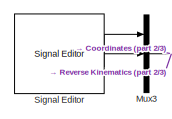
[diagram: root canvas - part 1/3, top left region]
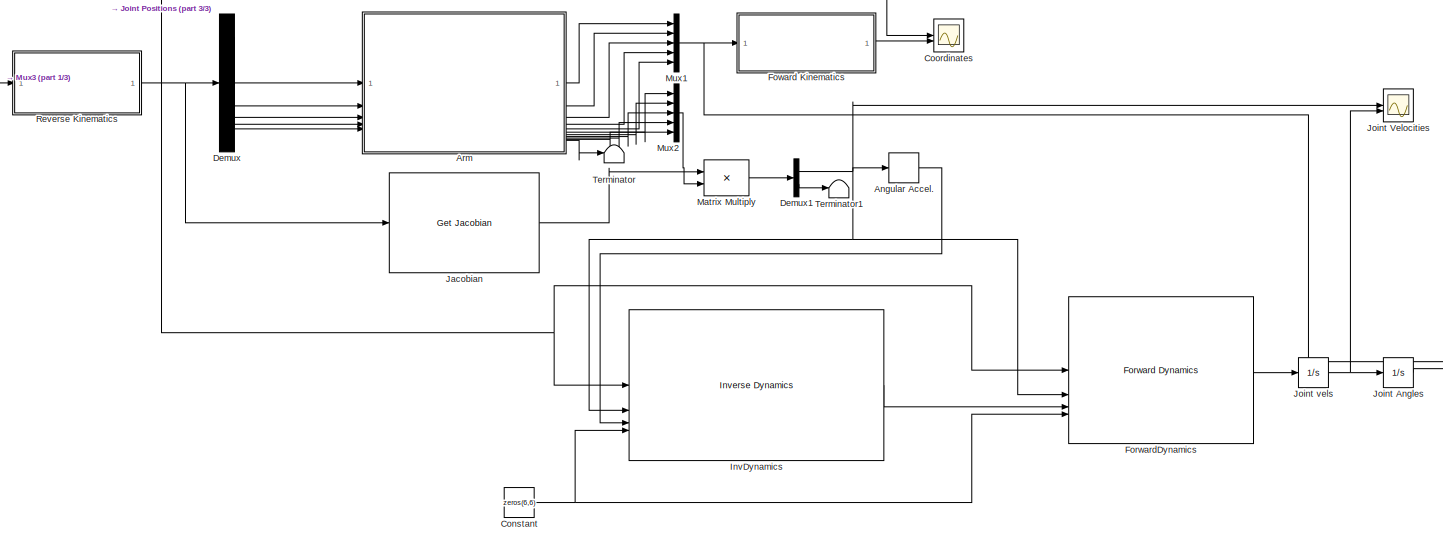
[diagram: root canvas - part 2/3, most of the canvas]
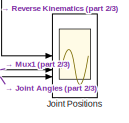
[diagram: root canvas - part 3/3, bottom right region]
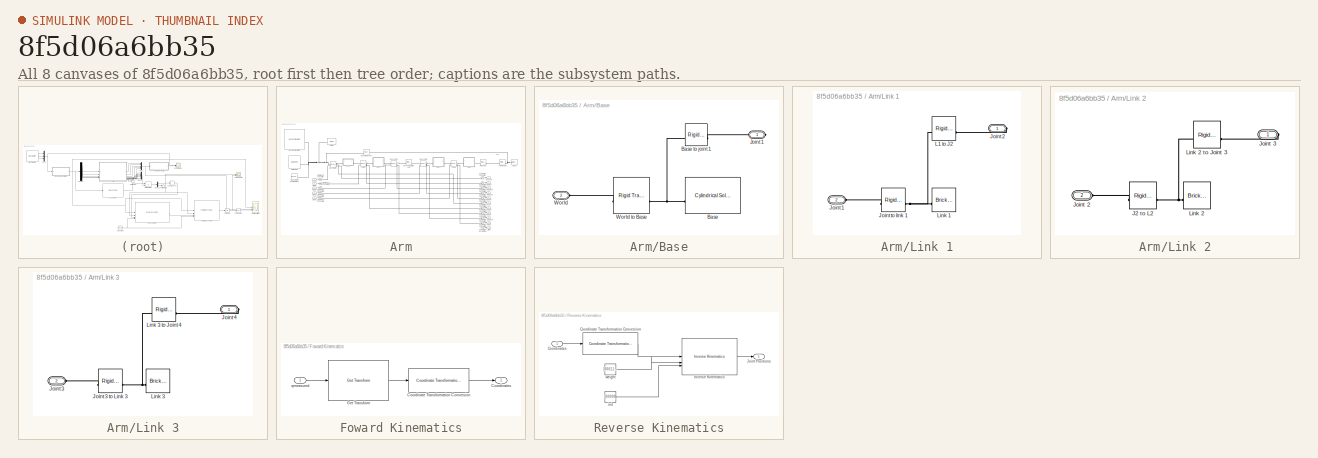
[diagram: thumbnail index - all 8 canvases of the model, root first then tree order]
MODEL slx_8f5d06a6bb35
KIND model
CONFIG AbsTol = auto
CONFIG EnableMultiTasking = off
CONFIG FixedStep = auto
CONFIG MaxStep = auto
CONFIG MinStep = auto
CONFIG RelTol = 1e-3
CONFIG SampleTimeConstraint = Unconstrained
CONFIG SolverName = VariableStepAuto
CONFIG StartTime = 0.0
CONFIG StopTime = 10
BLOCK [Derivative] Angular Accel.
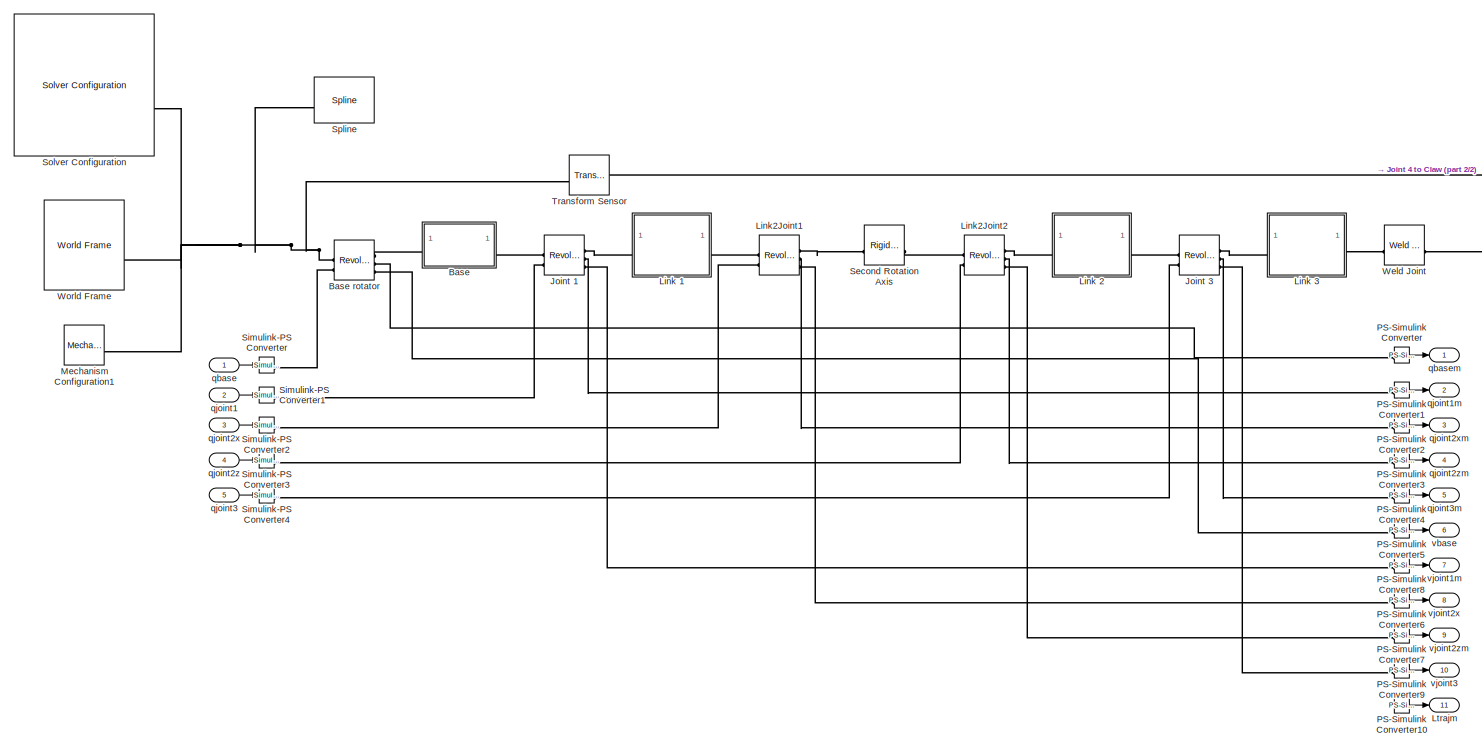
[diagram: Arm - part 1/2, most of the canvas]
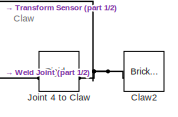
[diagram: Arm - part 2/2, top right region]
BLOCK [SubSystem] Arm
BLOCK [SubSystem] Arm/Base
BLOCK [Reference] Arm/Base rotator  REF=sm_lib/Joints/Revolute Joint
  SourceBlock = sm_lib/Joints/Revolute Joint
  SourceType = Revolute Joint
BLOCK [Reference] Arm/Base/Base  REF=sm_lib/Body Elements/Cylindrical Solid
  SourceBlock = sm_lib/Body Elements/Cylindrical Solid
  SourceType = Cylindrical Solid
BLOCK [Reference] Arm/Base/Base to joint 1  REF=sm_lib/Frames and
Transforms/Rigid
Transform
  SourceBlock = sm_lib/Frames and\nTransforms/Rigid\nTransform
  SourceType = Rigid\nTransform
BLOCK [PMIOPort] Arm/Base/Joint 1
  Side = Right
BLOCK [PMIOPort] Arm/Base/World
  Port = 2
  Side = Left
BLOCK [Reference] Arm/Base/World to Base  REF=sm_lib/Frames and
Transforms/Rigid
Transform
  SourceBlock = sm_lib/Frames and\nTransforms/Rigid\nTransform
  SourceType = Rigid\nTransform
BLOCK [Reference] Arm/Claw2  REF=sm_lib/Body Elements/Brick Solid
  SourceBlock = sm_lib/Body Elements/Brick Solid
  SourceType = Brick Solid
BLOCK [Reference] Arm/Joint 1  REF=sm_lib/Joints/Revolute Joint
  SourceBlock = sm_lib/Joints/Revolute Joint
  SourceType = Revolute Joint
BLOCK [Reference] Arm/Joint 3  REF=sm_lib/Joints/Revolute Joint
  SourceBlock = sm_lib/Joints/Revolute Joint
  SourceType = Revolute Joint
BLOCK [Reference] Arm/Joint 4 to Claw  REF=sm_lib/Frames and
Transforms/Rigid
Transform
  SourceBlock = sm_lib/Frames and\nTransforms/Rigid\nTransform
  SourceType = Rigid\nTransform
BLOCK [SubSystem] Arm/Link 1
BLOCK [PMIOPort] Arm/Link 1/Joint 1
  Port = 2
  Side = Left
BLOCK [PMIOPort] Arm/Link 1/Joint 2
  Side = Right
BLOCK [Reference] Arm/Link 1/Joint to link 1  REF=sm_lib/Frames and
Transforms/Rigid
Transform
  SourceBlock = sm_lib/Frames and\nTransforms/Rigid\nTransform
  SourceType = Rigid\nTransform
BLOCK [Reference] Arm/Link 1/L1 to J2  REF=sm_lib/Frames and
Transforms/Rigid
Transform
  SourceBlock = sm_lib/Frames and\nTransforms/Rigid\nTransform
  SourceType = Rigid\nTransform
BLOCK [Reference] Arm/Link 1/Link 1   REF=sm_lib/Body Elements/Brick Solid
  SourceBlock = sm_lib/Body Elements/Brick Solid
  SourceType = Brick Solid
BLOCK [SubSystem] Arm/Link 2
BLOCK [Reference] Arm/Link 2/J2 to L2  REF=sm_lib/Frames and
Transforms/Rigid
Transform
  SourceBlock = sm_lib/Frames and\nTransforms/Rigid\nTransform
  SourceType = Rigid\nTransform
BLOCK [PMIOPort] Arm/Link 2/Joint 2
  Port = 2
  Side = Left
BLOCK [PMIOPort] Arm/Link 2/Joint 3
  Side = Right
BLOCK [Reference] Arm/Link 2/Link 2  REF=sm_lib/Body Elements/Brick Solid
  SourceBlock = sm_lib/Body Elements/Brick Solid
  SourceType = Brick Solid
BLOCK [Reference] Arm/Link 2/Link 2 to Joint 3  REF=sm_lib/Frames and
Transforms/Rigid
Transform
  SourceBlock = sm_lib/Frames and\nTransforms/Rigid\nTransform
  SourceType = Rigid\nTransform
BLOCK [SubSystem] Arm/Link 3
BLOCK [PMIOPort] Arm/Link 3/Joint 3
  Port = 2
  Side = Left
BLOCK [Reference] Arm/Link 3/Joint 3 to Link 3  REF=sm_lib/Frames and
Transforms/Rigid
Transform
  SourceBlock = sm_lib/Frames and\nTransforms/Rigid\nTransform
  SourceType = Rigid\nTransform
BLOCK [PMIOPort] Arm/Link 3/Joint 4
  Side = Right
BLOCK [Reference] Arm/Link 3/Link 3  REF=sm_lib/Body Elements/Brick Solid
  SourceBlock = sm_lib/Body Elements/Brick Solid
  SourceType = Brick Solid
BLOCK [Reference] Arm/Link 3/Link 3 to Joint 4  REF=sm_lib/Frames and
Transforms/Rigid
Transform
  SourceBlock = sm_lib/Frames and\nTransforms/Rigid\nTransform
  SourceType = Rigid\nTransform
BLOCK [Reference] Arm/Link2Joint1  REF=sm_lib/Joints/Revolute Joint
  SourceBlock = sm_lib/Joints/Revolute Joint
  SourceType = Revolute Joint
BLOCK [Reference] Arm/Link2Joint2  REF=sm_lib/Joints/Revolute Joint
  SourceBlock = sm_lib/Joints/Revolute Joint
  SourceType = Revolute Joint
BLOCK [Outport] Arm/Ltrajm
  Port = 11
BLOCK [Reference] Arm/Mechanism Configuration1  REF=sm_lib/Utilities/Mechanism
Configuration
  SourceBlock = sm_lib/Utilities/Mechanism\nConfiguration
  SourceType = Mechanism\nConfiguration
BLOCK [Reference] Arm/PS-Simulink Converter  REF=nesl_utility/PS-Simulink
Converter
  SourceBlock = nesl_utility/PS-Simulink\nConverter
  SourceType = PS-Simulink\nConverter
BLOCK [Reference] Arm/PS-Simulink Converter1  REF=nesl_utility/PS-Simulink
Converter
  SourceBlock = nesl_utility/PS-Simulink\nConverter
  SourceType = PS-Simulink\nConverter
BLOCK [Reference] Arm/PS-Simulink Converter10  REF=nesl_utility/PS-Simulink
Converter
  SourceBlock = nesl_utility/PS-Simulink\nConverter
  SourceType = PS-Simulink\nConverter
BLOCK [Reference] Arm/PS-Simulink Converter2  REF=nesl_utility/PS-Simulink
Converter
  SourceBlock = nesl_utility/PS-Simulink\nConverter
  SourceType = PS-Simulink\nConverter
BLOCK [Reference] Arm/PS-Simulink Converter3  REF=nesl_utility/PS-Simulink
Converter
  SourceBlock = nesl_utility/PS-Simulink\nConverter
  SourceType = PS-Simulink\nConverter
BLOCK [Reference] Arm/PS-Simulink Converter4  REF=nesl_utility/PS-Simulink
Converter
  SourceBlock = nesl_utility/PS-Simulink\nConverter
  SourceType = PS-Simulink\nConverter
BLOCK [Reference] Arm/PS-Simulink Converter5  REF=nesl_utility/PS-Simulink
Converter
  SourceBlock = nesl_utility/PS-Simulink\nConverter
  SourceType = PS-Simulink\nConverter
BLOCK [Reference] Arm/PS-Simulink Converter6  REF=nesl_utility/PS-Simulink
Converter
  SourceBlock = nesl_utility/PS-Simulink\nConverter
  SourceType = PS-Simulink\nConverter
BLOCK [Reference] Arm/PS-Simulink Converter7  REF=nesl_utility/PS-Simulink
Converter
  SourceBlock = nesl_utility/PS-Simulink\nConverter
  SourceType = PS-Simulink\nConverter
BLOCK [Reference] Arm/PS-Simulink Converter8  REF=nesl_utility/PS-Simulink
Converter
  SourceBlock = nesl_utility/PS-Simulink\nConverter
  SourceType = PS-Simulink\nConverter
BLOCK [Reference] Arm/PS-Simulink Converter9  REF=nesl_utility/PS-Simulink
Converter
  SourceBlock = nesl_utility/PS-Simulink\nConverter
  SourceType = PS-Simulink\nConverter
BLOCK [Reference] Arm/Second Rotation Axis  REF=sm_lib/Frames and
Transforms/Rigid
Transform
  SourceBlock = sm_lib/Frames and\nTransforms/Rigid\nTransform
  SourceType = Rigid\nTransform
BLOCK [Reference] Arm/Simulink-PS Converter  REF=nesl_utility/Simulink-PS
Converter
  SourceBlock = nesl_utility/Simulink-PS\nConverter
  SourceType = Simulink-PS\nConverter
BLOCK [Reference] Arm/Simulink-PS Converter1  REF=nesl_utility/Simulink-PS
Converter
  SourceBlock = nesl_utility/Simulink-PS\nConverter
  SourceType = Simulink-PS\nConverter
BLOCK [Reference] Arm/Simulink-PS Converter2  REF=nesl_utility/Simulink-PS
Converter
  SourceBlock = nesl_utility/Simulink-PS\nConverter
  SourceType = Simulink-PS\nConverter
BLOCK [Reference] Arm/Simulink-PS Converter3  REF=nesl_utility/Simulink-PS
Converter
  SourceBlock = nesl_utility/Simulink-PS\nConverter
  SourceType = Simulink-PS\nConverter
BLOCK [Reference] Arm/Simulink-PS Converter4  REF=nesl_utility/Simulink-PS
Converter
  SourceBlock = nesl_utility/Simulink-PS\nConverter
  SourceType = Simulink-PS\nConverter
BLOCK [Reference] Arm/Solver Configuration  REF=nesl_utility/Solver
Configuration
  SourceBlock = nesl_utility/Solver\nConfiguration
  SourceType = Solver\nConfiguration
BLOCK [Reference] Arm/Spline  REF=sm_lib/Curves and Surfaces/Spline
  SourceBlock = sm_lib/Curves and Surfaces/Spline
  SourceType = Spline
BLOCK [Reference] Arm/Transform Sensor  REF=sm_lib/Frames and
Transforms/Transform
Sensor
  SourceBlock = sm_lib/Frames and\nTransforms/Transform\nSensor
  SourceType = Transform\nSensor
BLOCK [Reference] Arm/Weld Joint  REF=sm_lib/Joints/Weld Joint
  SourceBlock = sm_lib/Joints/Weld Joint
  SourceType = Weld Joint
BLOCK [Reference] Arm/World Frame  REF=sm_lib/Frames and
Transforms/World Frame
  SourceBlock = sm_lib/Frames and\nTransforms/World Frame
  SourceType = World Frame
BLOCK [Inport] Arm/qbase
BLOCK [Outport] Arm/qbasem
BLOCK [Inport] Arm/qjoint1
  Port = 2
BLOCK [Outport] Arm/qjoint1m
  Port = 2
BLOCK [Inport] Arm/qjoint2x
  Port = 3
BLOCK [Outport] Arm/qjoint2xm
  Port = 3
BLOCK [Inport] Arm/qjoint2z
  Port = 4
BLOCK [Outport] Arm/qjoint2zm
  Port = 4
BLOCK [Inport] Arm/qjoint3
  Port = 5
BLOCK [Outport] Arm/qjoint3m
  Port = 5
BLOCK [Outport] Arm/vbase
  Port = 6
BLOCK [Outport] Arm/vjoint1m
  Port = 7
BLOCK [Outport] Arm/vjoint2x
  Port = 8
BLOCK [Outport] Arm/vjoint2zm
  Port = 9
BLOCK [Outport] Arm/vjoint3
  Port = 10
BLOCK [Constant] Constant
  Value = zeros(6,6)
BLOCK [Scope] Coordinates
  Floating = off
  NumInputPorts = 2
  ScopeSpecificationString = Simulink.scopes.TimeScopeBlockCfg('CurrentConfiguration', extmgr.ConfigurationSet(extmgr.Configuration('Core','General UI',true),extmgr.Configuration('Core','Source UI',true),extmgr.Configuration('Sources','WiredSimulink',true,'DataLoggingVariableName','ScopeData1'),extmgr.Configuration('Visuals','Time Domain',true,'SerializedDisplays',{struct('MinYLimReal','0.375','MaxYLimReal','1.625','YLabelRea...<+2101ch>
BLOCK [Demux] Demux
  Outputs = 5
BLOCK [Demux] Demux1
  Outputs = 2
BLOCK [Reference] ForwardDynamics  REF=robotmaniplib/Forward Dynamics
  SourceBlock = robotmaniplib/Forward Dynamics
  SourceType = Forward Dynamics
BLOCK [SubSystem] Foward Kinematics
BLOCK [Reference] Foward Kinematics/Coordinate Transformation Conversion  REF=robotcorelib/Coordinate Transformation Conversion
  LibrarySourceBlock = robotutilslib/Coordinate Transformation Conversion
  SourceBlock = robotcorelib/Coordinate Transformation Conversion
  SourceType = robotics.slcore.internal.block.CoordinateTransformationConversion
BLOCK [Outport] Foward Kinematics/Coordinates
BLOCK [Reference] Foward Kinematics/Get Transform  REF=robotmaniplib/Get Transform
  SourceBlock = robotmaniplib/Get Transform
  SourceType = Get Transform
BLOCK [Inport] Foward Kinematics/qmeasured
BLOCK [Reference] InvDynamics  REF=robotmaniplib/Inverse Dynamics
  SourceBlock = robotmaniplib/Inverse Dynamics
  SourceType = Inverse Dynamics
BLOCK [Reference] Jacobian  REF=robotmaniplib/Get Jacobian
  SourceBlock = robotmaniplib/Get Jacobian
  SourceType = Get Jacobian
BLOCK [Integrator] Joint Angles
BLOCK [Scope] Joint Positions
  Floating = off
  NumInputPorts = 3
  ScopeSpecificationString = Simulink.scopes.TimeScopeBlockCfg('CurrentConfiguration', extmgr.ConfigurationSet(extmgr.Configuration('Core','General UI',true),extmgr.Configuration('Core','Source UI',true),extmgr.Configuration('Sources','WiredSimulink',true),extmgr.Configuration('Visuals','Time Domain',true,'SerializedDisplays',{struct('MinYLimReal','-1.38119','MaxYLimReal','0.1013','YLabelReal','','MinYLimMag','0.00000','MaxYL...<+2897ch>
BLOCK [Scope] Joint Velocities
  Floating = off
  NumInputPorts = 2
  ScopeSpecificationString = Simulink.scopes.TimeScopeBlockCfg('CurrentConfiguration', extmgr.ConfigurationSet(extmgr.Configuration('Core','General UI',true),extmgr.Configuration('Core','Source UI',true),extmgr.Configuration('Sources','WiredSimulink',true,'DataLoggingVariableName','ScopeData2'),extmgr.Configuration('Visuals','Time Domain',true,'SerializedDisplays',{struct('MinYLimReal','-0.32875','MaxYLimReal','0.19801','YLab...<+2130ch>
BLOCK [Integrator] Joint vels
BLOCK [Product] Matrix Multiply
  Multiplication = Matrix(*)
BLOCK [Mux] Mux1
  DisplayOption = bar
  Inputs = 5
BLOCK [Mux] Mux2
  DisplayOption = bar
  Inputs = 5
BLOCK [Mux] Mux3
  DisplayOption = bar
  Inputs = 3
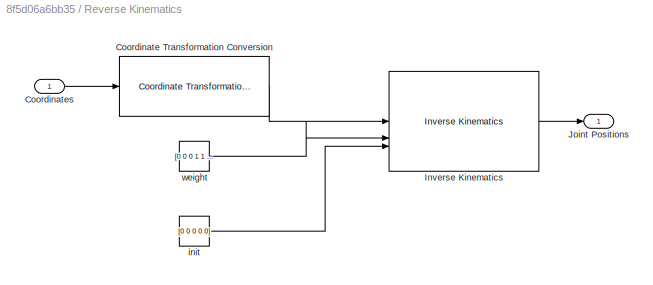
BLOCK [SubSystem] Reverse Kinematics
BLOCK [Reference] Reverse Kinematics/Coordinate Transformation Conversion  REF=robotcorelib/Coordinate Transformation Conversion
  LibrarySourceBlock = robotutilslib/Coordinate Transformation Conversion
  SourceBlock = robotcorelib/Coordinate Transformation Conversion
  SourceType = robotics.slcore.internal.block.CoordinateTransformationConversion
BLOCK [Inport] Reverse Kinematics/Coordinates
BLOCK [Reference] Reverse Kinematics/Inverse Kinematics  REF=robotmaniplib/Inverse Kinematics
  SourceBlock = robotmaniplib/Inverse Kinematics
  SourceType = Inverse Kinematics
BLOCK [Outport] Reverse Kinematics/Joint Positions
BLOCK [Constant] Reverse Kinematics/init
  Value = [0 0 0 0 0]
BLOCK [Constant] Reverse Kinematics/weight
  Value = [0 0 0 1 1 1]
BLOCK [Reference] Signal Editor  REF=SignalEditorBlockLib/Signal Editor
  LibrarySourceBlock = simulink/Sources/Signal Editor
  SourceBlock = SignalEditorBlockLib/Signal Editor
  SourceType = SignalEditor
  UserDataPersistent = on
BLOCK [Terminator] Terminator
BLOCK [Terminator] Terminator1
ANNOTATION Arm: Claw
LINE Angular Accel.:1 -> InvDynamics:3
LINE Arm/PS-Simulink Converter10:1 -> Arm/Ltrajm:1
LINE Arm/PS-Simulink Converter1:1 -> Arm/qjoint1m:1
LINE Arm/PS-Simulink Converter2:1 -> Arm/qjoint2xm:1
LINE Arm/PS-Simulink Converter3:1 -> Arm/qjoint2zm:1
LINE Arm/PS-Simulink Converter4:1 -> Arm/qjoint3m:1
LINE Arm/PS-Simulink Converter5:1 -> Arm/vbase:1
LINE Arm/PS-Simulink Converter6:1 -> Arm/vjoint2x:1
LINE Arm/PS-Simulink Converter7:1 -> Arm/vjoint2zm:1
LINE Arm/PS-Simulink Converter8:1 -> Arm/vjoint1m:1
LINE Arm/PS-Simulink Converter9:1 -> Arm/vjoint3:1
LINE Arm/PS-Simulink Converter:1 -> Arm/qbasem:1
LINE Arm/qbase:1 -> Arm/Simulink-PS Converter:1
LINE Arm/qjoint1:1 -> Arm/Simulink-PS Converter1:1
LINE Arm/qjoint2x:1 -> Arm/Simulink-PS Converter2:1
LINE Arm/qjoint2z:1 -> Arm/Simulink-PS Converter3:1
LINE Arm/qjoint3:1 -> Arm/Simulink-PS Converter4:1
LINE Arm:1 -> Mux1:1
LINE Arm:10 -> Mux2:5
LINE Arm:11 -> Terminator:1
LINE Arm:2 -> Mux1:2
LINE Arm:3 -> Mux1:3
LINE Arm:4 -> Mux1:4
LINE Arm:5 -> Mux1:5
LINE Arm:6 -> Mux2:1
LINE Arm:7 -> Mux2:2
LINE Arm:8 -> Mux2:3
LINE Arm:9 -> Mux2:4
NET Constant:1 -> ForwardDynamics:4, InvDynamics:4
NET Demux1:1 -> Angular Accel.:1, ForwardDynamics:2, InvDynamics:2, Joint Velocities:1
LINE Demux1:2 -> Terminator1:1
LINE Demux:1 -> Arm:1
LINE Demux:2 -> Arm:2
LINE Demux:3 -> Arm:3
LINE Demux:4 -> Arm:4
LINE Demux:5 -> Arm:5
LINE ForwardDynamics:1 -> Joint vels:1
LINE Foward Kinematics/Coordinate Transformation Conversion:1 -> Foward Kinematics/Coordinates:1
LINE Foward Kinematics/Get Transform:1 -> Foward Kinematics/Coordinate Transformation Conversion:1
LINE Foward Kinematics/qmeasured:1 -> Foward Kinematics/Get Transform:1
LINE Foward Kinematics:1 -> Coordinates:2
LINE InvDynamics:1 -> ForwardDynamics:3
LINE Jacobian:1 -> Matrix Multiply:1
LINE Joint Angles:1 -> Joint Positions:3
NET Joint vels:1 -> Joint Angles:1, Joint Velocities:2
LINE Matrix Multiply:1 -> Demux1:1
NET Mux1:1 -> Foward Kinematics:1, Joint Positions:2
LINE Mux2:1 -> Matrix Multiply:2
NET Mux3:1 -> Coordinates:1, Reverse Kinematics:1
LINE Reverse Kinematics/Coordinate Transformation Conversion:1 -> Reverse Kinematics/Inverse Kinematics:1
LINE Reverse Kinematics/Coordinates:1 -> Reverse Kinematics/Coordinate Transformation Conversion:1
LINE Reverse Kinematics/Inverse Kinematics:1 -> Reverse Kinematics/Joint Positions:1
LINE Reverse Kinematics/init:1 -> Reverse Kinematics/Inverse Kinematics:3
LINE Reverse Kinematics/weight:1 -> Reverse Kinematics/Inverse Kinematics:2
NET Reverse Kinematics:1 -> Demux:1, ForwardDynamics:1, InvDynamics:1, Jacobian:1, Joint Positions:1
LINE Signal Editor:1 -> Mux3:1
LINE Signal Editor:2 -> Mux3:2
LINE Signal Editor:3 -> Mux3:3
PNET net1: Arm/Base rotator:LConn1 -- Arm/Mechanism Configuration1:RConn1 -- Arm/Solver Configuration:RConn1 -- Arm/Spline:LConn1 -- Arm/Transform Sensor:LConn1 -- Arm/World Frame:RConn1
PLINE Arm/Base rotator:LConn2 -- Arm/Simulink-PS Converter:RConn1
PLINE Arm/Base rotator:RConn1 -- Arm/Base:LConn1
PLINE Arm/Base rotator:RConn2 -- Arm/PS-Simulink Converter:LConn1
PLINE Arm/Base rotator:RConn3 -- Arm/PS-Simulink Converter5:LConn1
PNET net2: Arm/Base/Base to joint 1:LConn1 -- Arm/Base/Base:RConn1 -- Arm/Base/World to Base:RConn1
PLINE Arm/Base/Base to joint 1:RConn1 -- Arm/Base/Joint 1:RConn1
PLINE Arm/Base/World to Base:LConn1 -- Arm/Base/World:RConn1
PLINE Arm/Base:RConn1 -- Arm/Joint 1:LConn1
PNET net3: Arm/Claw2:RConn1 -- Arm/Joint 4 to Claw:RConn1 -- Arm/Transform Sensor:RConn1
PLINE Arm/Joint 1:LConn2 -- Arm/Simulink-PS Converter1:RConn1
PLINE Arm/Joint 1:RConn1 -- Arm/Link 1:LConn1
PLINE Arm/Joint 1:RConn2 -- Arm/PS-Simulink Converter1:LConn1
PLINE Arm/Joint 1:RConn3 -- Arm/PS-Simulink Converter8:LConn1
PLINE Arm/Joint 3:LConn1 -- Arm/Link 2:RConn1
PLINE Arm/Joint 3:LConn2 -- Arm/Simulink-PS Converter4:RConn1
PLINE Arm/Joint 3:RConn1 -- Arm/Link 3:LConn1
PLINE Arm/Joint 3:RConn2 -- Arm/PS-Simulink Converter4:LConn1
PLINE Arm/Joint 3:RConn3 -- Arm/PS-Simulink Converter9:LConn1
PLINE Arm/Joint 4 to Claw:LConn1 -- Arm/Weld Joint:RConn1
PLINE Arm/Link 1/Joint 1:RConn1 -- Arm/Link 1/Joint to link 1:LConn1
PLINE Arm/Link 1/Joint 2:RConn1 -- Arm/Link 1/L1 to J2:RConn1
PNET net4: Arm/Link 1/Joint to link 1:RConn1 -- Arm/Link 1/L1 to J2:LConn1 -- Arm/Link 1/Link 1 :RConn1
PLINE Arm/Link 1:RConn1 -- Arm/Link2Joint1:LConn1
PLINE Arm/Link 2/J2 to L2:LConn1 -- Arm/Link 2/Joint 2:RConn1
PNET net5: Arm/Link 2/J2 to L2:RConn1 -- Arm/Link 2/Link 2 to Joint 3:LConn1 -- Arm/Link 2/Link 2:RConn1
PLINE Arm/Link 2/Joint 3:RConn1 -- Arm/Link 2/Link 2 to Joint 3:RConn1
PLINE Arm/Link 2:LConn1 -- Arm/Link2Joint2:RConn1
PLINE Arm/Link 3/Joint 3 to Link 3:LConn1 -- Arm/Link 3/Joint 3:RConn1
PNET net6: Arm/Link 3/Joint 3 to Link 3:RConn1 -- Arm/Link 3/Link 3 to Joint 4:LConn1 -- Arm/Link 3/Link 3:RConn1
PLINE Arm/Link 3/Joint 4:RConn1 -- Arm/Link 3/Link 3 to Joint 4:RConn1
PLINE Arm/Link 3:RConn1 -- Arm/Weld Joint:LConn1
PLINE Arm/Link2Joint1:LConn2 -- Arm/Simulink-PS Converter2:RConn1
PLINE Arm/Link2Joint1:RConn1 -- Arm/Second Rotation Axis:LConn1
PLINE Arm/Link2Joint1:RConn2 -- Arm/PS-Simulink Converter2:LConn1
PLINE Arm/Link2Joint1:RConn3 -- Arm/PS-Simulink Converter6:LConn1
PLINE Arm/Link2Joint2:LConn1 -- Arm/Second Rotation Axis:RConn1
PLINE Arm/Link2Joint2:LConn2 -- Arm/Simulink-PS Converter3:RConn1
PLINE Arm/Link2Joint2:RConn2 -- Arm/PS-Simulink Converter3:LConn1
PLINE Arm/Link2Joint2:RConn3 -- Arm/PS-Simulink Converter7:LConn1
note: NET lines group one-source signal fan-out (src -> all destinations, sorted); 1:1 wires keep LINE; PNET lines group multi-terminal physical nets as a canonical sorted terminal list (undirected conserving connections); 2-terminal nets keep the pairwise PLINE form
